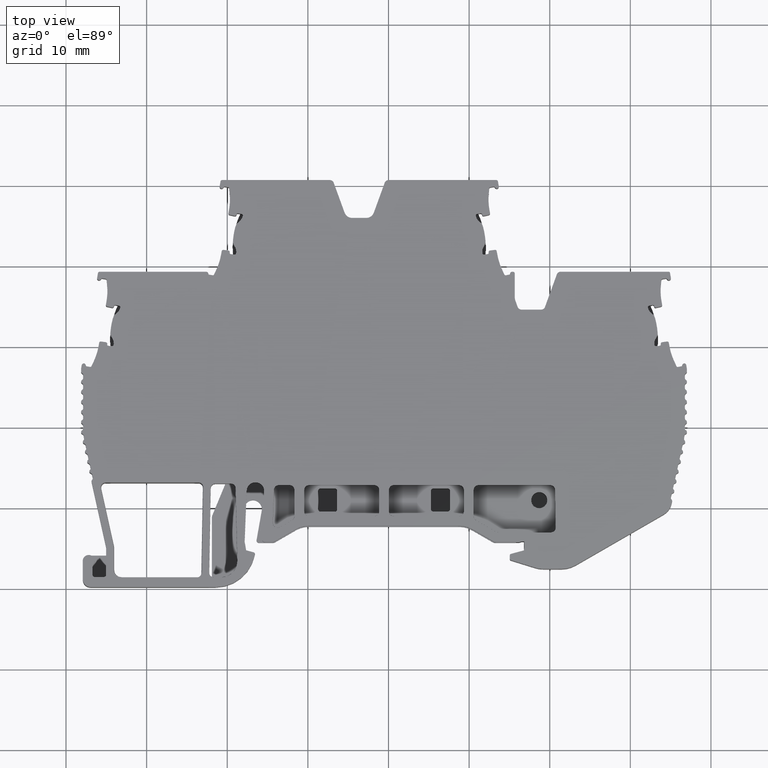
[diagram: clean part render]
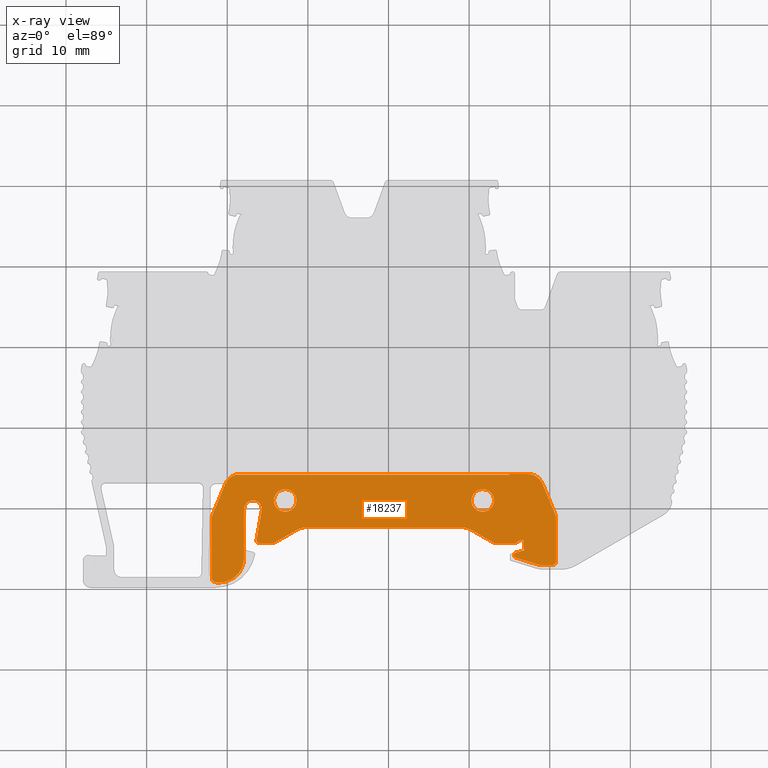
[diagram: x-ray — body ghosted, one internal face saturated and labeled with its STEP entity id]
A machine part, top view, then the same camera in x-ray: the body is ghosted and one INTERNAL B-rep face — a face not visible from any outside direction — is saturated and labeled: STEP entity #18237.
In plain terms, the highlighted planar face has unit normal (0, -0, 1).
Its self-contained STEP definition (entity closure, byte-faithful):
#85 = CIRCLE ( 'NONE', #24846, 0.9999999999996678213 ) ;
#143 = LINE ( 'NONE', #25724, #28857 ) ;
#274 = EDGE_CURVE ( 'NONE', #8051, #9242, #143, .T. ) ;
#283 = ORIENTED_EDGE ( 'NONE', *, *, #26768, .F. ) ;
#421 = CIRCLE ( 'NONE', #16740, 1.000000000000111910 ) ;
#475 = EDGE_CURVE ( 'NONE', #6428, #4917, #8930, .T. ) ;
#484 = LINE ( 'NONE', #19094, #8588 ) ;
#558 = EDGE_CURVE ( 'NONE', #24808, #16977, #23350, .T. ) ;
#675 = VERTEX_POINT ( 'NONE', #16967 ) ;
#831 = DIRECTION ( 'NONE',  ( -1.776356830050185078E-15, 2.961114267037269966E-12, -1.000000000000000000 ) ) ;
#992 = EDGE_CURVE ( 'NONE', #6003, #27020, #16015, .T. ) ;
#1057 = AXIS2_PLACEMENT_3D ( 'NONE', #10264, #2969, #17521 ) ;
#1191 = DIRECTION ( 'NONE',  ( 0.000000000000000000, -1.000000000000000000, -4.731069912806530501E-12 ) ) ;
#1279 = EDGE_CURVE ( 'NONE', #8483, #22618, #421, .T. ) ;
#1373 = EDGE_LOOP ( 'NONE', ( #283, #4915 ) ) ;
#1445 = CARTESIAN_POINT ( 'NONE',  ( 1949.118846377849877, 483.0156992976380366, -0.02499999997018514941 ) ) ;
#1468 = CARTESIAN_POINT ( 'NONE',  ( 1913.928657734134958, 475.6847127064730216, -0.02499999999182020080 ) ) ;
#1540 = CIRCLE ( 'NONE', #10964, 3.083962780616844590 ) ;
#1679 = CARTESIAN_POINT ( 'NONE',  ( 1908.092969024735112, 478.7751111454180091, -0.02499999998269510082 ) ) ;
#1741 = CARTESIAN_POINT ( 'NONE',  ( 1945.691340746700007, 475.9847127063760013, -0.02499999999082535077 ) ) ;
#1746 = VECTOR ( 'NONE', #1191, 1000.000000000000000 ) ;
#1804 = VECTOR ( 'NONE', #17621, 1000.000000000000000 ) ;
#1970 = CIRCLE ( 'NONE', #12389, 1.099999999999767830 ) ;
#2162 = VERTEX_POINT ( 'NONE', #8902 ) ;
#2227 = CARTESIAN_POINT ( 'NONE',  ( 1912.092966163699884, 473.8847255810820229, -0.02499999999714535084 ) ) ;
#2260 = DIRECTION ( 'NONE',  ( -0.8660238550993066831, 0.5000026823917397278, 1.486789396497695300E-12 ) ) ;
#2287 = DIRECTION ( 'NONE',  ( -3.108624468951471077E-12, -1.000000000000000000, -2.961115375252979906E-12 ) ) ;
#2466 = DIRECTION ( 'NONE',  ( 1.776356830050185078E-15, -2.961114267037269966E-12, 1.000000000000000000 ) ) ;
#2535 = CARTESIAN_POINT ( 'NONE',  ( 1938.841889403515097, 474.6693883772560412, -0.02499999999479524809 ) ) ;
#2546 = LINE ( 'NONE', #9679, #22661 ) ;
#2555 = DIRECTION ( 'NONE',  ( -2.960594732334624538E-12, -1.000000000000000000, -2.961114245875607310E-12 ) ) ;
#2735 = VERTEX_POINT ( 'NONE', #22333 ) ;
#2751 = ORIENTED_EDGE ( 'NONE', *, *, #28403, .T. ) ;
#2806 = DIRECTION ( 'NONE',  ( 0.1736481776697454682, 0.9848077530117116396, 2.921825943485178775E-12 ) ) ;
#2907 = ORIENTED_EDGE ( 'NONE', *, *, #22404, .T. ) ;
#2961 = ORIENTED_EDGE ( 'NONE', *, *, #6179, .T. ) ;
#2969 = DIRECTION ( 'NONE',  ( -1.776356830050185078E-15, 2.961114267037269966E-12, -1.000000000000000000 ) ) ;
#3038 = DIRECTION ( 'NONE',  ( -1.776356824646915045E-15, 4.731069912806530501E-12, -1.000000000000000000 ) ) ;
#3082 = CARTESIAN_POINT ( 'NONE',  ( 1913.192969024740023, 479.8746933803270167, -0.02499999997938524843 ) ) ;
#3211 = DIRECTION ( 'NONE',  ( -1.776356830050185078E-15, 2.961114267037269966E-12, -1.000000000000000000 ) ) ;
#3217 = EDGE_CURVE ( 'NONE', #9242, #12361, #14844, .T. ) ;
#3242 = CARTESIAN_POINT ( 'NONE',  ( 1914.276257553055075, 479.6836803848910336, -0.02499999998005529925 ) ) ;
#3372 = CARTESIAN_POINT ( 'NONE',  ( 1909.009095599040393, 470.7769138438371215, -0.02500000000648721493 ) ) ;
#3450 = VERTEX_POINT ( 'NONE', #19005 ) ;
#3491 = VECTOR ( 'NONE', #28129, 1000.000000000000000 ) ;
#3504 = DIRECTION ( 'NONE',  ( -2.664535259100077621E-12, -1.000000000000000000, -2.961118763383454240E-12 ) ) ;
#3514 = CARTESIAN_POINT ( 'NONE',  ( 1941.692966163739811, 482.3598604050970948, -0.02499999997517175082 ) ) ;
#3777 = DIRECTION ( 'NONE',  ( -1.776356830050185078E-15, 2.961114267037269966E-12, -1.000000000000000000 ) ) ;
#4018 = VECTOR ( 'NONE', #18649, 1000.000000000000114 ) ;
#4264 = LINE ( 'NONE', #1468, #3491 ) ;
#4283 = EDGE_CURVE ( 'NONE', #18883, #14030, #4845, .T. ) ;
#4374 = DIRECTION ( 'NONE',  ( 3.119670624889734695E-12, 1.000000000000000000, 2.937768593559204923E-12 ) ) ;
#4446 = CARTESIAN_POINT ( 'NONE',  ( 1943.217251896170183, 475.6847127063830385, -0.02499999999170524762 ) ) ;
#4597 = DIRECTION ( 'NONE',  ( 0.3826834323621278178, -0.9238795325125136459, -2.689788538315124249E-12 ) ) ;
#4738 = EDGE_CURVE ( 'NONE', #25160, #15921, #2546, .T. ) ;
#4786 = ORIENTED_EDGE ( 'NONE', *, *, #10057, .T. ) ;
#4831 = CARTESIAN_POINT ( 'NONE',  ( 1917.192966163739811, 480.9598604050970039, -0.02499999998175015184 ) ) ;
#4845 = CIRCLE ( 'NONE', #12759, 2.999999999999891642 ) ;
#4915 = ORIENTED_EDGE ( 'NONE', *, *, #22240, .F. ) ;
#4917 = VERTEX_POINT ( 'NONE', #29033 ) ;
#5012 = CIRCLE ( 'NONE', #27254, 1.999999999999724221 ) ;
#5107 = ORIENTED_EDGE ( 'NONE', *, *, #12019, .T. ) ;
#5189 = DIRECTION ( 'NONE',  ( -1.000000000000000000, 0.000000000000000000, 1.776356824646915045E-15 ) ) ;
#5223 = VERTEX_POINT ( 'NONE', #9190 ) ;
#5262 = CARTESIAN_POINT ( 'NONE',  ( 1920.044048645929934, 474.6693883773140215, -0.02499999999473019943 ) ) ;
#5264 = EDGE_CURVE ( 'NONE', #2735, #24367, #22762, .T. ) ;
#5312 = CIRCLE ( 'NONE', #24598, 1.999999999999835243 ) ;
#5443 = LINE ( 'NONE', #16899, #25606 ) ;
#5509 = VECTOR ( 'NONE', #21934, 1000.000000000000000 ) ;
#5752 = CARTESIAN_POINT ( 'NONE',  ( 1944.935921286549728, 484.2503324329214820, -0.02499999996661689955 ) ) ;
#5868 = DIRECTION ( 'NONE',  ( -3.027880976251065820E-12, -1.000000000000000000, -2.961113219168755471E-12 ) ) ;
#6003 = VERTEX_POINT ( 'NONE', #25158 ) ;
#6171 = CIRCLE ( 'NONE', #30424, 0.2999999999997449152 ) ;
#6179 = EDGE_CURVE ( 'NONE', #10149, #21648, #484, .T. ) ;
#6229 = DIRECTION ( 'NONE',  ( -3.108624468950090558E-12, -1.000000000000000000, -2.961115375251665222E-12 ) ) ;
#6342 = CARTESIAN_POINT ( 'NONE',  ( 1938.841889403525101, 477.6693883772569507, -0.02499999998591519862 ) ) ;
#6368 = EDGE_CURVE ( 'NONE', #17711, #9490, #12952, .T. ) ;
#6428 = VERTEX_POINT ( 'NONE', #9156 ) ;
#6435 = CIRCLE ( 'NONE', #8398, 1.400000000000067857 ) ;
#6608 = DIRECTION ( 'NONE',  ( -1.776356830050185078E-15, 2.961114267037269966E-12, -1.000000000000000000 ) ) ;
#6664 = AXIS2_PLACEMENT_3D ( 'NONE', #12522, #3211, #27213 ) ;
#6677 = DIRECTION ( 'NONE',  ( 0.9659230709110930846, 0.2588293280941775798, 7.647075304279440991E-13 ) ) ;
#6912 = EDGE_CURVE ( 'NONE', #21836, #24808, #5312, .T. ) ;
#6928 = DIRECTION ( 'NONE',  ( -1.000000000000000000, 3.015302874738534922E-12, 3.491481338421395299E-15 ) ) ;
#6993 = VERTEX_POINT ( 'NONE', #16958 ) ;
#7054 = EDGE_CURVE ( 'NONE', #12361, #2735, #19648, .T. ) ;
#7135 = CARTESIAN_POINT ( 'NONE',  ( 1945.724568208800065, 473.8688798008100207, -0.02499999999726030056 ) ) ;
#7156 = DIRECTION ( 'NONE',  ( 0.000000000000000000, -1.000000000000000000, -4.731071065664910317E-12 ) ) ;
#7163 = ORIENTED_EDGE ( 'NONE', *, *, #9068, .T. ) ;
#7310 = DIRECTION ( 'NONE',  ( -1.000000000000000000, 2.906425021968365003E-12, 3.491481338098295227E-15 ) ) ;
#7349 = DIRECTION ( 'NONE',  ( 1.776356830050185078E-15, -2.961114267037269966E-12, 1.000000000000000000 ) ) ;
#7565 = CARTESIAN_POINT ( 'NONE',  ( 1949.792969024739932, 478.7750973310389782, -0.02499999998262009832 ) ) ;
#7580 = ORIENTED_EDGE ( 'NONE', *, *, #9070, .T. ) ;
#7704 = CARTESIAN_POINT ( 'NONE',  ( 1950.792969024720151, 473.4233260166179775, -0.02499999999839044862 ) ) ;
#7816 = CARTESIAN_POINT ( 'NONE',  ( 1945.724568208800065, 473.8688798008100207, -0.02499999999726030056 ) ) ;
#7944 = ORIENTED_EDGE ( 'NONE', *, *, #22891, .T. ) ;
#8041 = EDGE_CURVE ( 'NONE', #9490, #25733, #10411, .T. ) ;
#8051 = VERTEX_POINT ( 'NONE', #12789 ) ;
#8073 = CARTESIAN_POINT ( 'NONE',  ( 1909.767085949599959, 483.0156992977600225, -0.02499999997004510172 ) ) ;
#8398 = AXIS2_PLACEMENT_3D ( 'NONE', #9150, #18589, #21087 ) ;
#8420 = ORIENTED_EDGE ( 'NONE', *, *, #16479, .T. ) ;
#8434 = DIRECTION ( 'NONE',  ( -3.108624469016009744E-12, -1.000000000000000000, -2.961111987182667211E-12 ) ) ;
#8483 = VERTEX_POINT ( 'NONE', #1679 ) ;
#8527 = CARTESIAN_POINT ( 'NONE',  ( 1917.192966163739811, 480.9598604050970039, -0.02499999998175015184 ) ) ;
#8588 = VECTOR ( 'NONE', #16459, 1000.000000000000000 ) ;
#8665 = LINE ( 'NONE', #18421, #13706 ) ;
#8735 = ORIENTED_EDGE ( 'NONE', *, *, #10017, .T. ) ;
#8795 = VECTOR ( 'NONE', #2806, 1000.000000000000114 ) ;
#8902 = CARTESIAN_POINT ( 'NONE',  ( 1945.691340746700007, 475.6847127063760468, -0.02499999999171050036 ) ) ;
#8905 = CARTESIAN_POINT ( 'NONE',  ( 1908.512448016934968, 470.8171671095020088, -0.02500000000623530186 ) ) ;
#8930 = LINE ( 'NONE', #28143, #9582 ) ;
#8984 = DIRECTION ( 'NONE',  ( 0.000000000000000000, -1.000000000000000000, -4.731071065664910317E-12 ) ) ;
#9027 = ORIENTED_EDGE ( 'NONE', *, *, #16993, .T. ) ;
#9061 = CARTESIAN_POINT ( 'NONE',  ( 1908.092969024714876, 471.3106408851849665, -0.02500000000468015002 ) ) ;
#9068 = EDGE_CURVE ( 'NONE', #13299, #6993, #10447, .T. ) ;
#9070 = EDGE_CURVE ( 'NONE', #2162, #20489, #18697, .T. ) ;
#9098 = DIRECTION ( 'NONE',  ( -3.108624468950090558E-12, -1.000000000000000000, -2.961111987119876205E-12 ) ) ;
#9119 = DIRECTION ( 'NONE',  ( -3.095990026788391174E-12, -1.000000000000000000, -2.961114606774704457E-12 ) ) ;
#9150 = CARTESIAN_POINT ( 'NONE',  ( 1941.692966163739811, 480.9598604050970039, -0.02499999998179525118 ) ) ;
#9156 = CARTESIAN_POINT ( 'NONE',  ( 1942.967250554974953, 475.7517007788339924, -0.02499999999148019847 ) ) ;
#9190 = CARTESIAN_POINT ( 'NONE',  ( 1917.192966163739811, 479.5598604050969698, -0.02499999998837365220 ) ) ;
#9242 = VERTEX_POINT ( 'NONE', #24879 ) ;
#9245 = CARTESIAN_POINT ( 'NONE',  ( 1950.716848557249932, 479.1577807634009787, -0.02499999998151504824 ) ) ;
#9258 = CIRCLE ( 'NONE', #17160, 0.3000000000000779821 ) ;
#9259 = DIRECTION ( 'NONE',  ( -1.776356830050185078E-15, 2.961114267037269966E-12, -1.000000000000000000 ) ) ;
#9274 = AXIS2_PLACEMENT_3D ( 'NONE', #12322, #26110, #2555 ) ;
#9316 = CARTESIAN_POINT ( 'NONE',  ( 1911.028991801226084, 484.1626022916889838, -0.02499999996683190812 ) ) ;
#9490 = VERTEX_POINT ( 'NONE', #8905 ) ;
#9517 = ORIENTED_EDGE ( 'NONE', *, *, #25116, .T. ) ;
#9582 = VECTOR ( 'NONE', #2260, 1000.000000000000227 ) ;
#9679 = CARTESIAN_POINT ( 'NONE',  ( 1896.978752798377400, 484.1626022916889838, -0.02499999996655871692 ) ) ;
#9778 = VERTEX_POINT ( 'NONE', #18771 ) ;
#9827 = ORIENTED_EDGE ( 'NONE', *, *, #6912, .T. ) ;
#9887 = CARTESIAN_POINT ( 'NONE',  ( 1950.292969024719923, 472.9233260166189439, -0.02499999999994519800 ) ) ;
#9946 = ORIENTED_EDGE ( 'NONE', *, *, #20224, .T. ) ;
#10017 = EDGE_CURVE ( 'NONE', #27935, #24092, #5443, .T. ) ;
#10057 = EDGE_CURVE ( 'NONE', #28557, #13533, #14579, .T. ) ;
#10149 = VERTEX_POINT ( 'NONE', #29135 ) ;
#10264 = CARTESIAN_POINT ( 'NONE',  ( 1909.009095599049942, 473.8608766244539652, -0.02499999999735524892 ) ) ;
#10286 = AXIS2_PLACEMENT_3D ( 'NONE', #4831, #19078, #7156 ) ;
#10386 = CARTESIAN_POINT ( 'NONE',  ( 1950.292969024719923, 473.4233260166189439, -0.02499999999839044862 ) ) ;
#10411 = CIRCLE ( 'NONE', #14361, 0.4999999999894533254 ) ;
#10447 = CIRCLE ( 'NONE', #27754, 0.5000000000000559552 ) ;
#10459 = CARTESIAN_POINT ( 'NONE',  ( 1943.217251896170183, 476.1847127063830385, -0.02499999999037039872 ) ) ;
#10775 = FACE_OUTER_BOUND ( 'NONE', #21743, .T. ) ;
#10857 = DIRECTION ( 'NONE',  ( -2.960594732332981082E-12, -1.000000000000000000, -2.961114245873963854E-12 ) ) ;
#10964 = AXIS2_PLACEMENT_3D ( 'NONE', #13912, #16385, #9119 ) ;
#11103 = CARTESIAN_POINT ( 'NONE',  ( 1947.271087312830105, 482.2503324329139787, -0.02499999997262029872 ) ) ;
#11106 = ORIENTED_EDGE ( 'NONE', *, *, #6368, .T. ) ;
#11127 = AXIS2_PLACEMENT_3D ( 'NONE', #10459, #12926, #22703 ) ;
#11304 = VERTEX_POINT ( 'NONE', #8073 ) ;
#11477 = CARTESIAN_POINT ( 'NONE',  ( 1917.192966163739811, 482.3598604050970948, -0.02499999997512665148 ) ) ;
#11596 = EDGE_CURVE ( 'NONE', #11304, #15921, #5012, .T. ) ;
#11771 = CIRCLE ( 'NONE', #10286, 1.400000000000067857 ) ;
#12019 = EDGE_CURVE ( 'NONE', #27020, #17711, #1540, .T. ) ;
#12130 = EDGE_CURVE ( 'NONE', #16977, #10149, #85, .T. ) ;
#12242 = CARTESIAN_POINT ( 'NONE',  ( 1945.548630798404929, 474.2094623273110301, -0.02499999999615050081 ) ) ;
#12304 = VERTEX_POINT ( 'NONE', #17294 ) ;
#12322 = CARTESIAN_POINT ( 'NONE',  ( 1946.492969024729973, 475.7547004417600078, -0.02499999999149014884 ) ) ;
#12361 = VERTEX_POINT ( 'NONE', #13263 ) ;
#12389 = AXIS2_PLACEMENT_3D ( 'NONE', #3082, #22006, #5868 ) ;
#12522 = CARTESIAN_POINT ( 'NONE',  ( 1945.798630798404929, 474.1076573810419745, -0.02499999999637515097 ) ) ;
#12529 = CARTESIAN_POINT ( 'NONE',  ( 1944.935921286549728, 505.8095947062975029, -0.02499999986423084852 ) ) ;
#12680 = LINE ( 'NONE', #12529, #1746 ) ;
#12759 = AXIS2_PLACEMENT_3D ( 'NONE', #5262, #2466, #26166 ) ;
#12789 = CARTESIAN_POINT ( 'NONE',  ( 1945.733923466380020, 474.4509430950390083, -0.02499999999548525170 ) ) ;
#12924 = DIRECTION ( 'NONE',  ( -3.108624468950090558E-12, -1.000000000000000000, -2.961111987119876205E-12 ) ) ;
#12926 = DIRECTION ( 'NONE',  ( -1.776356830050185078E-15, 2.961114267037269966E-12, -1.000000000000000000 ) ) ;
#12952 = CIRCLE ( 'NONE', #1057, 3.083962780616844590 ) ;
#13030 = DIRECTION ( 'NONE',  ( 0.000000000000000000, -1.000000000000000000, -4.731071065664910317E-12 ) ) ;
#13092 = CARTESIAN_POINT ( 'NONE',  ( 1908.592969024705098, 471.3106408851960509, -0.02500000000468015002 ) ) ;
#13177 = CIRCLE ( 'NONE', #30494, 3.000000000001279421 ) ;
#13231 = DIRECTION ( 'NONE',  ( -2.960594732336267994E-12, -1.000000000000000000, -2.961114245877251170E-12 ) ) ;
#13240 = DIRECTION ( 'NONE',  ( 1.776356824646915045E-15, -4.731069912806536155E-12, 1.000000000000000000 ) ) ;
#13263 = CARTESIAN_POINT ( 'NONE',  ( 1946.792969024730155, 475.7547004417580183, -0.02499999999149014884 ) ) ;
#13276 = VECTOR ( 'NONE', #24687, 1000.000000000000114 ) ;
#13299 = VERTEX_POINT ( 'NONE', #15661 ) ;
#13340 = CARTESIAN_POINT ( 'NONE',  ( 1909.092969024740114, 478.7751111454149964, -0.02499999998270029805 ) ) ;
#13381 = FACE_BOUND ( 'NONE', #1373, .T. ) ;
#13434 = CARTESIAN_POINT ( 'NONE',  ( 1915.918687494480082, 475.7517007789159607, -0.02499999999160509856 ) ) ;
#13450 = ORIENTED_EDGE ( 'NONE', *, *, #11596, .T. ) ;
#13533 = VERTEX_POINT ( 'NONE', #3242 ) ;
#13675 = VERTEX_POINT ( 'NONE', #6342 ) ;
#13706 = VECTOR ( 'NONE', #30188, 1000.000000000000000 ) ;
#13741 = DIRECTION ( 'NONE',  ( -0.8660238551023851095, -0.5000026823864079928, -1.480741984239946048E-12 ) ) ;
#13912 = CARTESIAN_POINT ( 'NONE',  ( 1909.009095599049942, 473.8608766244539652, -0.02499999999735524892 ) ) ;
#14030 = VERTEX_POINT ( 'NONE', #23004 ) ;
#14323 = CARTESIAN_POINT ( 'NONE',  ( 1947.271087312835107, 484.2503324329139787, -0.02499999996662504928 ) ) ;
#14361 = AXIS2_PLACEMENT_3D ( 'NONE', #13092, #17879, #8434 ) ;
#14399 = VECTOR ( 'NONE', #6928, 1000.000000000000000 ) ;
#14579 = LINE ( 'NONE', #24049, #8795 ) ;
#14744 = ORIENTED_EDGE ( 'NONE', *, *, #475, .T. ) ;
#14844 = LINE ( 'NONE', #24615, #1804 ) ;
#15072 = CARTESIAN_POINT ( 'NONE',  ( 1909.767085949599959, 483.0156992977600225, -0.02499999997004510172 ) ) ;
#15225 = LINE ( 'NONE', #15072, #13276 ) ;
#15402 = ORIENTED_EDGE ( 'NONE', *, *, #5264, .T. ) ;
#15434 = VECTOR ( 'NONE', #4597, 1000.000000000000114 ) ;
#15483 = ORIENTED_EDGE ( 'NONE', *, *, #7054, .T. ) ;
#15580 = DIRECTION ( 'NONE',  ( -1.776356830050185078E-15, 2.961114267037269966E-12, -1.000000000000000000 ) ) ;
#15616 = CARTESIAN_POINT ( 'NONE',  ( 1945.841335990649895, 475.7249023393910079, -0.02499999999171050036 ) ) ;
#15661 = CARTESIAN_POINT ( 'NONE',  ( 1915.918687494480082, 475.7517007789159607, -0.02499999999160509856 ) ) ;
#15921 = VERTEX_POINT ( 'NONE', #9316 ) ;
#16015 = LINE ( 'NONE', #2227, #4018 ) ;
#16385 = DIRECTION ( 'NONE',  ( -1.776356830050185078E-15, 2.961114267037269966E-12, -1.000000000000000000 ) ) ;
#16394 = CARTESIAN_POINT ( 'NONE',  ( 1913.928657734134958, 475.6847127064730216, -0.02499999999182020080 ) ) ;
#16459 = DIRECTION ( 'NONE',  ( -3.101666818361324906E-12, -1.000000000000000000, -2.967515460675544983E-12 ) ) ;
#16479 = EDGE_CURVE ( 'NONE', #28523, #12304, #29403, .T. ) ;
#16740 = AXIS2_PLACEMENT_3D ( 'NONE', #13340, #27914, #6229 ) ;
#16761 = AXIS2_PLACEMENT_3D ( 'NONE', #8527, #20003, #13030 ) ;
#16899 = CARTESIAN_POINT ( 'NONE',  ( 1948.848794024970175, 472.9233260166239461, -0.02499999999993525110 ) ) ;
#16958 = CARTESIAN_POINT ( 'NONE',  ( 1915.668686153285080, 475.6847127064680194, -0.02499999999182539803 ) ) ;
#16967 = CARTESIAN_POINT ( 'NONE',  ( 1948.700668845764994, 472.9457708561599816, -0.02499999999993525110 ) ) ;
#16977 = VERTEX_POINT ( 'NONE', #24709 ) ;
#16993 = EDGE_CURVE ( 'NONE', #20489, #6428, #19043, .T. ) ;
#17032 = VECTOR ( 'NONE', #24778, 1000.000000000000000 ) ;
#17090 = EDGE_CURVE ( 'NONE', #24367, #2162, #6171, .T. ) ;
#17149 = DIRECTION ( 'NONE',  ( -1.776356830050185078E-15, 2.961114267037269966E-12, -1.000000000000000000 ) ) ;
#17160 = AXIS2_PLACEMENT_3D ( 'NONE', #30193, #17652, #10857 ) ;
#17294 = CARTESIAN_POINT ( 'NONE',  ( 1945.548630798404929, 474.1076573810429977, -0.02499999999637515097 ) ) ;
#17300 = EDGE_CURVE ( 'NONE', #21648, #27935, #29424, .T. ) ;
#17411 = ORIENTED_EDGE ( 'NONE', *, *, #4283, .T. ) ;
#17521 = DIRECTION ( 'NONE',  ( -3.095990026788391174E-12, -1.000000000000000000, -2.961114606774704457E-12 ) ) ;
#17565 = CARTESIAN_POINT ( 'NONE',  ( 1948.848794024970175, 473.4233260166239461, -0.02499999999838049825 ) ) ;
#17587 = VERTEX_POINT ( 'NONE', #16394 ) ;
#17621 = DIRECTION ( 'NONE',  ( 3.713265354292279509E-12, 1.000000000000000000, 2.967515460675544983E-12 ) ) ;
#17652 = DIRECTION ( 'NONE',  ( -1.776356830050185078E-15, 2.961114267037269966E-12, -1.000000000000000000 ) ) ;
#17711 = VERTEX_POINT ( 'NONE', #3372 ) ;
#17879 = DIRECTION ( 'NONE',  ( -1.776356830050185078E-15, 2.961114267037269966E-12, -1.000000000000000000 ) ) ;
#18185 = CARTESIAN_POINT ( 'NONE',  ( 1936.942966163735036, 484.5003324329470047, -0.02499999996503519950 ) ) ;
#18237 = ADVANCED_FACE ( 'NONE', ( #10775, #20219, #13381 ), #29657, .F. ) ;
#18421 = CARTESIAN_POINT ( 'NONE',  ( 1947.271087312835107, 484.2503324329139787, -0.02499999996662504928 ) ) ;
#18557 = CARTESIAN_POINT ( 'NONE',  ( 1908.169089492224884, 479.1577945777819991, -0.02499999998158534964 ) ) ;
#18589 = DIRECTION ( 'NONE',  ( -1.776356824646915045E-15, 4.731069912806530501E-12, -1.000000000000000000 ) ) ;
#18649 = DIRECTION ( 'NONE',  ( -4.776389567471609391E-07, -0.9999999999998858691, -2.967515459007549818E-12 ) ) ;
#18659 = ORIENTED_EDGE ( 'NONE', *, *, #17300, .T. ) ;
#18697 = LINE ( 'NONE', #4446, #14399 ) ;
#18771 = CARTESIAN_POINT ( 'NONE',  ( 1941.692966163739811, 479.5598604050969698, -0.02499999998841875154 ) ) ;
#18831 = ORIENTED_EDGE ( 'NONE', *, *, #19458, .F. ) ;
#18883 = VERTEX_POINT ( 'NONE', #28672 ) ;
#19005 = CARTESIAN_POINT ( 'NONE',  ( 1945.548630798404929, 474.2094623273110301, -0.02499999999615050081 ) ) ;
#19043 = CIRCLE ( 'NONE', #11127, 0.5000000000000559552 ) ;
#19078 = DIRECTION ( 'NONE',  ( -1.776356824646915045E-15, 4.731069912806530501E-12, -1.000000000000000000 ) ) ;
#19094 = CARTESIAN_POINT ( 'NONE',  ( 1950.792969024720151, 473.4233260166179775, -0.02499999999839044862 ) ) ;
#19238 = CARTESIAN_POINT ( 'NONE',  ( 1908.092969024735112, 478.7751111454180091, -0.02499999998269510082 ) ) ;
#19458 = EDGE_CURVE ( 'NONE', #5223, #22231, #11771, .T. ) ;
#19601 = DIRECTION ( 'NONE',  ( -1.000000000000000000, 3.012927930994425004E-12, -8.320758577248530668E-15 ) ) ;
#19648 = CIRCLE ( 'NONE', #9274, 0.2999999999999114486 ) ;
#19841 = AXIS2_PLACEMENT_3D ( 'NONE', #27200, #15580, #3504 ) ;
#19958 = ORIENTED_EDGE ( 'NONE', *, *, #22426, .T. ) ;
#20003 = DIRECTION ( 'NONE',  ( -1.776356824646915045E-15, 4.731069912806530501E-12, -1.000000000000000000 ) ) ;
#20053 = LINE ( 'NONE', #7816, #5509 ) ;
#20191 = ORIENTED_EDGE ( 'NONE', *, *, #274, .T. ) ;
#20219 = FACE_BOUND ( 'NONE', #27133, .T. ) ;
#20224 = EDGE_CURVE ( 'NONE', #14030, #13299, #25522, .T. ) ;
#20466 = ORIENTED_EDGE ( 'NONE', *, *, #12130, .T. ) ;
#20473 = EDGE_CURVE ( 'NONE', #22618, #11304, #15225, .T. ) ;
#20489 = VERTEX_POINT ( 'NONE', #24535 ) ;
#20661 = AXIS2_PLACEMENT_3D ( 'NONE', #21965, #3038, #8984 ) ;
#20779 = EDGE_CURVE ( 'NONE', #22231, #5223, #27656, .T. ) ;
#20815 = VERTEX_POINT ( 'NONE', #5752 ) ;
#20951 = ORIENTED_EDGE ( 'NONE', *, *, #26447, .T. ) ;
#21022 = DIRECTION ( 'NONE',  ( -3.108624468950694384E-12, -1.000000000000000000, -2.961113681186345863E-12 ) ) ;
#21087 = DIRECTION ( 'NONE',  ( 0.000000000000000000, -1.000000000000000000, -4.731071065664910317E-12 ) ) ;
#21341 = CARTESIAN_POINT ( 'NONE',  ( 1915.668686153285080, 476.1847127064680194, -0.02499999999049529881 ) ) ;
#21596 = AXIS2_PLACEMENT_3D ( 'NONE', #18185, #13240, #22709 ) ;
#21648 = VERTEX_POINT ( 'NONE', #7704 ) ;
#21684 = CARTESIAN_POINT ( 'NONE',  ( 1948.848794024970175, 472.9233260166239461, -0.02499999999993525110 ) ) ;
#21743 = EDGE_LOOP ( 'NONE', ( #23016, #9517, #9827, #26096, #20466, #2961, #18659, #8735, #29024, #2751, #8420, #2907, #7944, #20191, #26175, #15483, #15402, #25567, #7580, #9027, #14744, #23803, #25744, #17411, #9946, #7163, #25075, #27756, #4786, #19958, #22002, #5107, #11106, #25259, #20951, #24194, #27299, #13450, #23894 ) ) ;
#21809 = VECTOR ( 'NONE', #24317, 1000.000000000000000 ) ;
#21836 = VERTEX_POINT ( 'NONE', #14323 ) ;
#21854 = LINE ( 'NONE', #12242, #21809 ) ;
#21934 = DIRECTION ( 'NONE',  ( -0.9551103209262932214, 0.2962503584134090207, 8.824622686755682398E-13 ) ) ;
#21940 = CARTESIAN_POINT ( 'NONE',  ( 1920.044048645939938, 477.6693883773139646, -0.02499999998607044943 ) ) ;
#21965 = CARTESIAN_POINT ( 'NONE',  ( 1941.692966163739811, 480.9598604050970039, -0.02499999998179525118 ) ) ;
#22002 = ORIENTED_EDGE ( 'NONE', *, *, #992, .T. ) ;
#22006 = DIRECTION ( 'NONE',  ( 1.776356830050185078E-15, -2.961114267037269966E-12, 1.000000000000000000 ) ) ;
#22215 = VECTOR ( 'NONE', #13741, 999.9999999999998863 ) ;
#22231 = VERTEX_POINT ( 'NONE', #11477 ) ;
#22240 = EDGE_CURVE ( 'NONE', #29194, #9778, #6435, .T. ) ;
#22293 = DIRECTION ( 'NONE',  ( -1.776356830050185078E-15, 2.961114267037269966E-12, -1.000000000000000000 ) ) ;
#22326 = DIRECTION ( 'NONE',  ( -3.108624468949745226E-12, -1.000000000000000000, -2.961111987119547433E-12 ) ) ;
#22332 = CIRCLE ( 'NONE', #19841, 0.2500000000000279776 ) ;
#22333 = CARTESIAN_POINT ( 'NONE',  ( 1946.342973780780085, 476.0145108087440349, -0.02499999999082535077 ) ) ;
#22404 = EDGE_CURVE ( 'NONE', #12304, #3450, #21854, .T. ) ;
#22426 = EDGE_CURVE ( 'NONE', #13533, #6003, #1970, .T. ) ;
#22429 = VECTOR ( 'NONE', #19601, 1000.000000000000000 ) ;
#22594 = DIRECTION ( 'NONE',  ( -3.108624468950866848E-12, -1.000000000000000000, -2.961113681186510249E-12 ) ) ;
#22618 = VERTEX_POINT ( 'NONE', #18557 ) ;
#22661 = VECTOR ( 'NONE', #5189, 1000.000000000000000 ) ;
#22703 = DIRECTION ( 'NONE',  ( -3.108624468950090558E-12, -1.000000000000000000, -2.961111987119876205E-12 ) ) ;
#22709 = DIRECTION ( 'NONE',  ( 3.060176890657050133E-12, 1.000000000000000000, 4.731069912806530501E-12 ) ) ;
#22762 = LINE ( 'NONE', #15616, #17032 ) ;
#22891 = EDGE_CURVE ( 'NONE', #3450, #8051, #22332, .T. ) ;
#22906 = AXIS2_PLACEMENT_3D ( 'NONE', #17565, #831, #12924 ) ;
#23004 = CARTESIAN_POINT ( 'NONE',  ( 1918.544040598769925, 477.2674599426209738, -0.02499999998695039832 ) ) ;
#23016 = ORIENTED_EDGE ( 'NONE', *, *, #25371, .F. ) ;
#23041 = EDGE_CURVE ( 'NONE', #6993, #17587, #4264, .T. ) ;
#23350 = LINE ( 'NONE', #9245, #15434 ) ;
#23571 = CARTESIAN_POINT ( 'NONE',  ( 1913.633215408229944, 476.0368071597740141, -0.02499999999093030154 ) ) ;
#23803 = ORIENTED_EDGE ( 'NONE', *, *, #25872, .T. ) ;
#23894 = ORIENTED_EDGE ( 'NONE', *, *, #4738, .F. ) ;
#24049 = CARTESIAN_POINT ( 'NONE',  ( 1914.276257553055075, 479.6836803848910336, -0.02499999998005529925 ) ) ;
#24092 = VERTEX_POINT ( 'NONE', #21684 ) ;
#24194 = ORIENTED_EDGE ( 'NONE', *, *, #1279, .T. ) ;
#24317 = DIRECTION ( 'NONE',  ( 5.241255640397440142E-12, 1.000000000000000000, 2.967515460675540136E-12 ) ) ;
#24367 = VERTEX_POINT ( 'NONE', #27375 ) ;
#24535 = CARTESIAN_POINT ( 'NONE',  ( 1943.217251896170183, 475.6847127063830385, -0.02499999999170524762 ) ) ;
#24598 = AXIS2_PLACEMENT_3D ( 'NONE', #11103, #6608, #21022 ) ;
#24615 = CARTESIAN_POINT ( 'NONE',  ( 1946.792969024730155, 475.7547004417580183, -0.02499999999149014884 ) ) ;
#24640 = DIRECTION ( 'NONE',  ( -1.776356830050185078E-15, 2.961114267037269966E-12, -1.000000000000000000 ) ) ;
#24687 = DIRECTION ( 'NONE',  ( 0.3826834323680105010, 0.9238795325100768174, 2.740290664466149557E-12 ) ) ;
#24709 = CARTESIAN_POINT ( 'NONE',  ( 1950.716848557249932, 479.1577807634009787, -0.02499999998151504824 ) ) ;
#24778 = DIRECTION ( 'NONE',  ( -0.8660345566149691976, -0.4999841464973801552, -1.480686941338548267E-12 ) ) ;
#24808 = VERTEX_POINT ( 'NONE', #1445 ) ;
#24846 = AXIS2_PLACEMENT_3D ( 'NONE', #7565, #17149, #2287 ) ;
#24879 = CARTESIAN_POINT ( 'NONE',  ( 1946.792969024725153, 474.7347255809760327, -0.02499999999460009864 ) ) ;
#25075 = ORIENTED_EDGE ( 'NONE', *, *, #23041, .T. ) ;
#25116 = EDGE_CURVE ( 'NONE', #20815, #21836, #8665, .T. ) ;
#25158 = CARTESIAN_POINT ( 'NONE',  ( 1912.092969024739887, 479.8746933803309958, -0.02499999997938049875 ) ) ;
#25160 = VERTEX_POINT ( 'NONE', #25242 ) ;
#25242 = CARTESIAN_POINT ( 'NONE',  ( 1944.935921286549728, 484.1626022916889838, -0.02499999996664390572 ) ) ;
#25259 = ORIENTED_EDGE ( 'NONE', *, *, #8041, .T. ) ;
#25371 = EDGE_CURVE ( 'NONE', #20815, #25160, #12680, .T. ) ;
#25522 = LINE ( 'NONE', #13434, #22215 ) ;
#25567 = ORIENTED_EDGE ( 'NONE', *, *, #17090, .T. ) ;
#25606 = VECTOR ( 'NONE', #7310, 1000.000000000000000 ) ;
#25724 = CARTESIAN_POINT ( 'NONE',  ( 1946.792969024725153, 474.7347255809760327, -0.02499999999460009864 ) ) ;
#25733 = VERTEX_POINT ( 'NONE', #9061 ) ;
#25744 = ORIENTED_EDGE ( 'NONE', *, *, #29520, .T. ) ;
#25872 = EDGE_CURVE ( 'NONE', #4917, #13675, #13177, .T. ) ;
#26064 = CARTESIAN_POINT ( 'NONE',  ( 1912.092966163699884, 473.8847255810820229, -0.02499999999714535084 ) ) ;
#26096 = ORIENTED_EDGE ( 'NONE', *, *, #558, .T. ) ;
#26110 = DIRECTION ( 'NONE',  ( 1.776356830050185078E-15, -2.961114267037269966E-12, 1.000000000000000000 ) ) ;
#26166 = DIRECTION ( 'NONE',  ( -3.034609600642204269E-12, -1.000000000000000000, -2.961114245874840310E-12 ) ) ;
#26175 = ORIENTED_EDGE ( 'NONE', *, *, #3217, .T. ) ;
#26366 = CIRCLE ( 'NONE', #22906, 0.5000000000000559552 ) ;
#26447 = EDGE_CURVE ( 'NONE', #25733, #8483, #28677, .T. ) ;
#26572 = LINE ( 'NONE', #21940, #22429 ) ;
#26640 = EDGE_CURVE ( 'NONE', #17587, #28557, #9258, .T. ) ;
#26768 = EDGE_CURVE ( 'NONE', #9778, #29194, #30539, .T. ) ;
#27020 = VERTEX_POINT ( 'NONE', #26064 ) ;
#27133 = EDGE_LOOP ( 'NONE', ( #18831, #28944 ) ) ;
#27200 = CARTESIAN_POINT ( 'NONE',  ( 1945.798630798404929, 474.2094623273110301, -0.02499999999615050081 ) ) ;
#27213 = DIRECTION ( 'NONE',  ( -2.664535259097119481E-12, -1.000000000000000000, -2.961118763380166520E-12 ) ) ;
#27220 = CARTESIAN_POINT ( 'NONE',  ( 1911.614845014619959, 482.2503324330249939, -0.02499999997249539863 ) ) ;
#27254 = AXIS2_PLACEMENT_3D ( 'NONE', #27220, #22293, #22594 ) ;
#27299 = ORIENTED_EDGE ( 'NONE', *, *, #20473, .T. ) ;
#27375 = CARTESIAN_POINT ( 'NONE',  ( 1945.841335990649895, 475.7249023393910079, -0.02499999999171050036 ) ) ;
#27656 = CIRCLE ( 'NONE', #16761, 1.400000000000067857 ) ;
#27754 = AXIS2_PLACEMENT_3D ( 'NONE', #21341, #9259, #9098 ) ;
#27756 = ORIENTED_EDGE ( 'NONE', *, *, #26640, .T. ) ;
#27914 = DIRECTION ( 'NONE',  ( -1.776356830050185078E-15, 2.961114267037269966E-12, -1.000000000000000000 ) ) ;
#27935 = VERTEX_POINT ( 'NONE', #9887 ) ;
#28129 = DIRECTION ( 'NONE',  ( -1.000000000000000000, 3.123981769497315067E-12, 3.491481338743900175E-15 ) ) ;
#28143 = CARTESIAN_POINT ( 'NONE',  ( 1940.341897450689885, 477.2674599425540123, -0.02499999998703019907 ) ) ;
#28403 = EDGE_CURVE ( 'NONE', #675, #28523, #20053, .T. ) ;
#28458 = AXIS2_PLACEMENT_3D ( 'NONE', #10386, #24640, #22326 ) ;
#28523 = VERTEX_POINT ( 'NONE', #7135 ) ;
#28557 = VERTEX_POINT ( 'NONE', #23571 ) ;
#28568 = DIRECTION ( 'NONE',  ( -3.034609600640800324E-12, -1.000000000000000000, -2.961114245873470696E-12 ) ) ;
#28672 = CARTESIAN_POINT ( 'NONE',  ( 1920.044048645939938, 477.6693883773139646, -0.02499999998607044943 ) ) ;
#28677 = LINE ( 'NONE', #19238, #30519 ) ;
#28857 = VECTOR ( 'NONE', #6677, 1000.000000000000114 ) ;
#28944 = ORIENTED_EDGE ( 'NONE', *, *, #20779, .F. ) ;
#29024 = ORIENTED_EDGE ( 'NONE', *, *, #29584, .T. ) ;
#29033 = CARTESIAN_POINT ( 'NONE',  ( 1940.341897450689885, 477.2674599425540123, -0.02499999998703019907 ) ) ;
#29135 = CARTESIAN_POINT ( 'NONE',  ( 1950.792969024735157, 478.7750973310359655, -0.02499999998262529902 ) ) ;
#29194 = VERTEX_POINT ( 'NONE', #3514 ) ;
#29403 = CIRCLE ( 'NONE', #6664, 0.2500000000003055334 ) ;
#29424 = CIRCLE ( 'NONE', #28458, 0.5000000000001114664 ) ;
#29520 = EDGE_CURVE ( 'NONE', #13675, #18883, #26572, .T. ) ;
#29584 = EDGE_CURVE ( 'NONE', #24092, #675, #26366, .T. ) ;
#29657 = PLANE ( 'NONE',  #21596 ) ;
#30188 = DIRECTION ( 'NONE',  ( 1.000000000000000000, -3.215317392943340157E-12, -3.491481339014940161E-15 ) ) ;
#30193 = CARTESIAN_POINT ( 'NONE',  ( 1913.928657734134958, 475.9847127064729762, -0.02499999999093549877 ) ) ;
#30424 = AXIS2_PLACEMENT_3D ( 'NONE', #1741, #3777, #13231 ) ;
#30494 = AXIS2_PLACEMENT_3D ( 'NONE', #2535, #7349, #28568 ) ;
#30519 = VECTOR ( 'NONE', #4374, 1000.000000000000000 ) ;
#30539 = CIRCLE ( 'NONE', #20661, 1.400000000000067857 ) ;